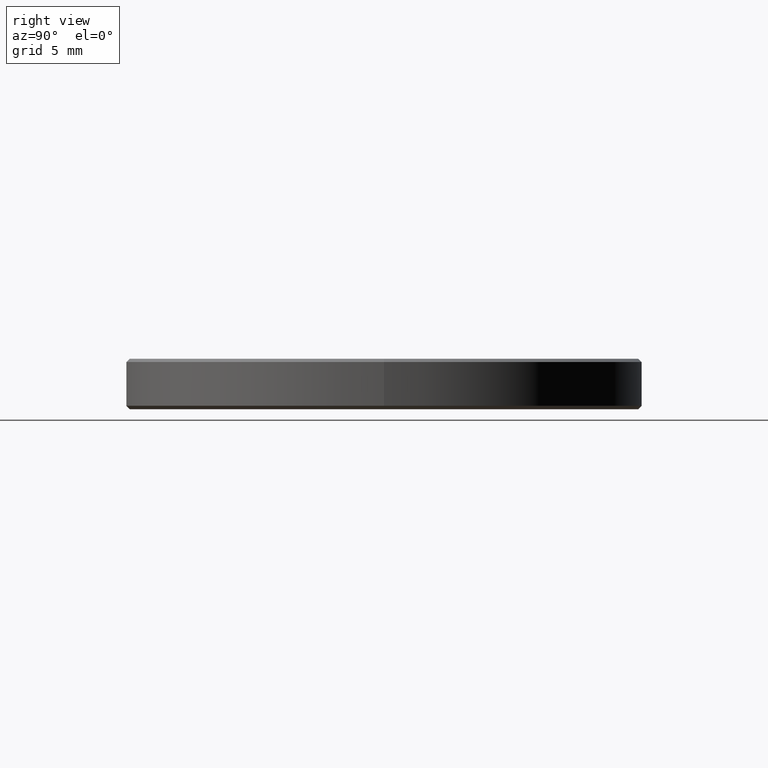
[diagram: clean part render]
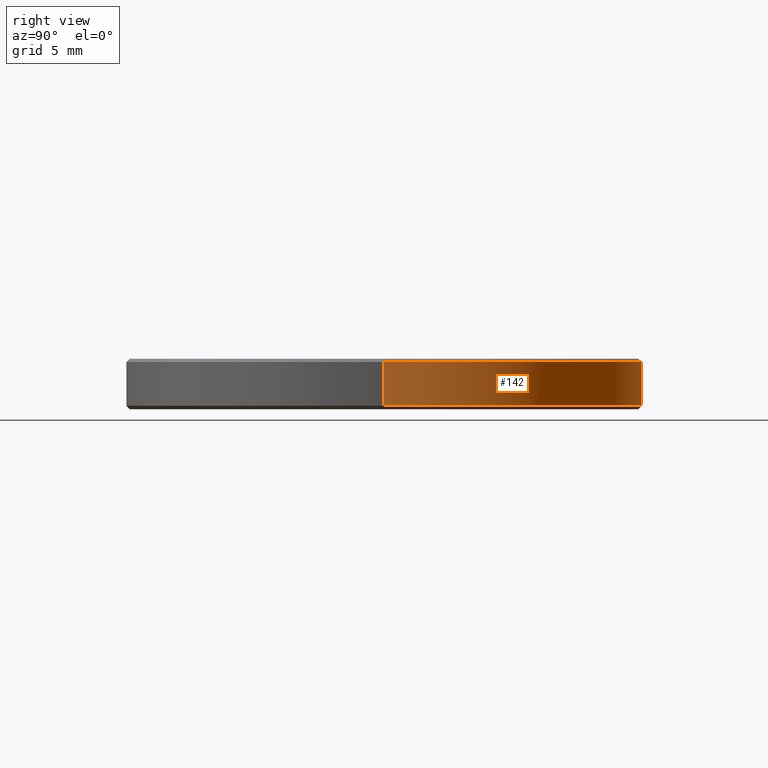
[diagram: same view with one face highlighted and labeled with its STEP entity id]
A machine part, right view. The second image highlights one B-rep face of the part: STEP entity #142.
In plain terms, the highlighted cylindrical surface (partial cylindrical patch) has radius 15 mm, axis along (-0, -0, 1).
Its self-contained STEP definition (entity closure, byte-faithful):
#3 = CARTESIAN_POINT ( 'NONE',  ( -15.00000000000000000, 1.836970198721029589E-15, 0.2000000000000048683 ) ) ;
#10 = DIRECTION ( 'NONE',  ( 1.000000000000000000, 0.000000000000000000, 0.000000000000000000 ) ) ;
#14 = EDGE_LOOP ( 'NONE', ( #240, #52, #252, #207 ) ) ;
#16 = DIRECTION ( 'NONE',  ( -0.000000000000000000, -0.000000000000000000, 1.000000000000000000 ) ) ;
#21 = CARTESIAN_POINT ( 'NONE',  ( 15.00000000000000000, 0.000000000000000000, 2.500000000000000000 ) ) ;
#27 = AXIS2_PLACEMENT_3D ( 'NONE', #256, #203, #10 ) ;
#28 = DIRECTION ( 'NONE',  ( 0.000000000000000000, 0.000000000000000000, -1.000000000000000000 ) ) ;
#35 = LINE ( 'NONE', #21, #124 ) ;
#52 = ORIENTED_EDGE ( 'NONE', *, *, #181, .T. ) ;
#53 = CARTESIAN_POINT ( 'NONE',  ( 0.000000000000000000, 0.000000000000000000, 2.500000000000000000 ) ) ;
#69 = EDGE_CURVE ( 'NONE', #216, #170, #35, .T. ) ;
#72 = DIRECTION ( 'NONE',  ( -0.000000000000000000, -0.000000000000000000, 1.000000000000000000 ) ) ;
#84 = CIRCLE ( 'NONE', #149, 15.00000000000000000 ) ;
#95 = EDGE_CURVE ( 'NONE', #99, #170, #84, .T. ) ;
#99 = VERTEX_POINT ( 'NONE', #232 ) ;
#100 = CARTESIAN_POINT ( 'NONE',  ( -15.00000000000000000, 1.836970198721029589E-15, 2.500000000000000000 ) ) ;
#119 = DIRECTION ( 'NONE',  ( -1.000000000000000000, 0.000000000000000000, 0.000000000000000000 ) ) ;
#123 = CARTESIAN_POINT ( 'NONE',  ( 15.00000000000000000, 0.000000000000000000, 2.740000000000020197 ) ) ;
#124 = VECTOR ( 'NONE', #16, 1000.000000000000000 ) ;
#131 = AXIS2_PLACEMENT_3D ( 'NONE', #53, #204, #163 ) ;
#133 = CARTESIAN_POINT ( 'NONE',  ( 0.000000000000000000, 0.000000000000000000, 2.740000000000020197 ) ) ;
#139 = CIRCLE ( 'NONE', #27, 15.00000000000000000 ) ;
#142 = ADVANCED_FACE ( 'NONE', ( #238 ), #143, .T. ) ;
#143 = CYLINDRICAL_SURFACE ( 'NONE', #131, 15.00000000000000000 ) ;
#149 = AXIS2_PLACEMENT_3D ( 'NONE', #133, #28, #119 ) ;
#154 = CARTESIAN_POINT ( 'NONE',  ( 15.00000000000000000, 0.000000000000000000, 0.2000000000000048683 ) ) ;
#158 = VECTOR ( 'NONE', #72, 1000.000000000000000 ) ;
#163 = DIRECTION ( 'NONE',  ( 1.000000000000000000, 0.000000000000000000, 0.000000000000000000 ) ) ;
#170 = VERTEX_POINT ( 'NONE', #123 ) ;
#178 = EDGE_CURVE ( 'NONE', #216, #213, #139, .T. ) ;
#181 = EDGE_CURVE ( 'NONE', #213, #99, #220, .T. ) ;
#203 = DIRECTION ( 'NONE',  ( -0.000000000000000000, -0.000000000000000000, 1.000000000000000000 ) ) ;
#204 = DIRECTION ( 'NONE',  ( -0.000000000000000000, -0.000000000000000000, 1.000000000000000000 ) ) ;
#207 = ORIENTED_EDGE ( 'NONE', *, *, #69, .F. ) ;
#213 = VERTEX_POINT ( 'NONE', #3 ) ;
#216 = VERTEX_POINT ( 'NONE', #154 ) ;
#220 = LINE ( 'NONE', #100, #158 ) ;
#232 = CARTESIAN_POINT ( 'NONE',  ( -15.00000000000000000, 1.836970198721029589E-15, 2.740000000000020197 ) ) ;
#238 = FACE_OUTER_BOUND ( 'NONE', #14, .T. ) ;
#240 = ORIENTED_EDGE ( 'NONE', *, *, #178, .T. ) ;
#252 = ORIENTED_EDGE ( 'NONE', *, *, #95, .T. ) ;
#256 = CARTESIAN_POINT ( 'NONE',  ( 0.000000000000000000, 0.000000000000000000, 0.2000000000000048683 ) ) ;